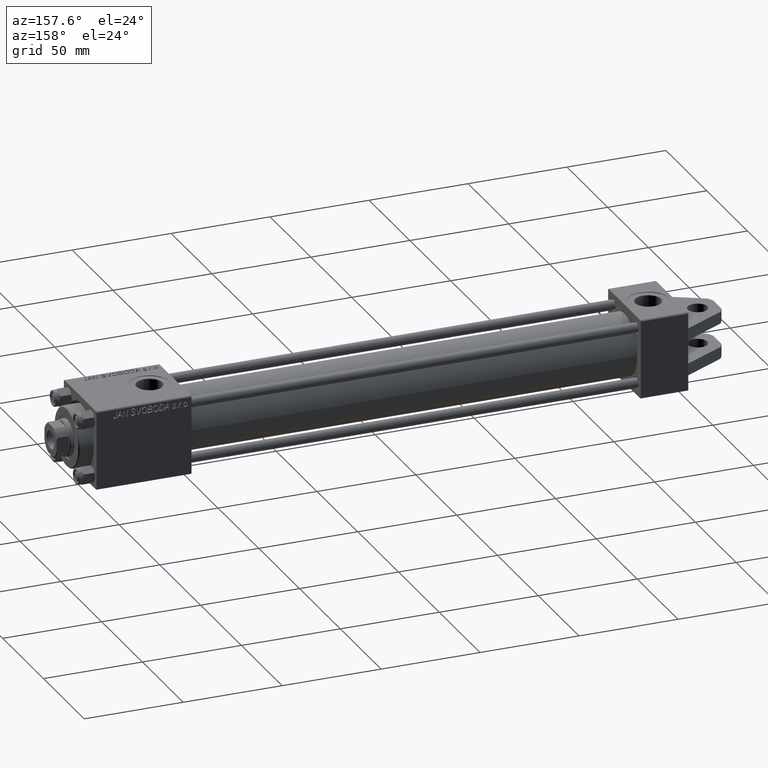
[diagram: clean part render]
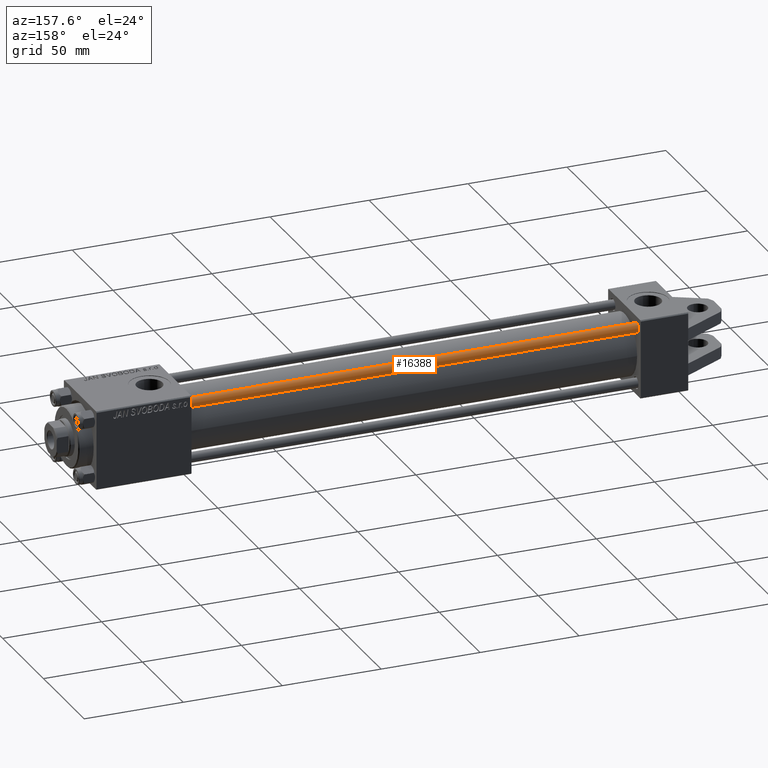
[diagram: same view with one face highlighted and labeled with its STEP entity id]
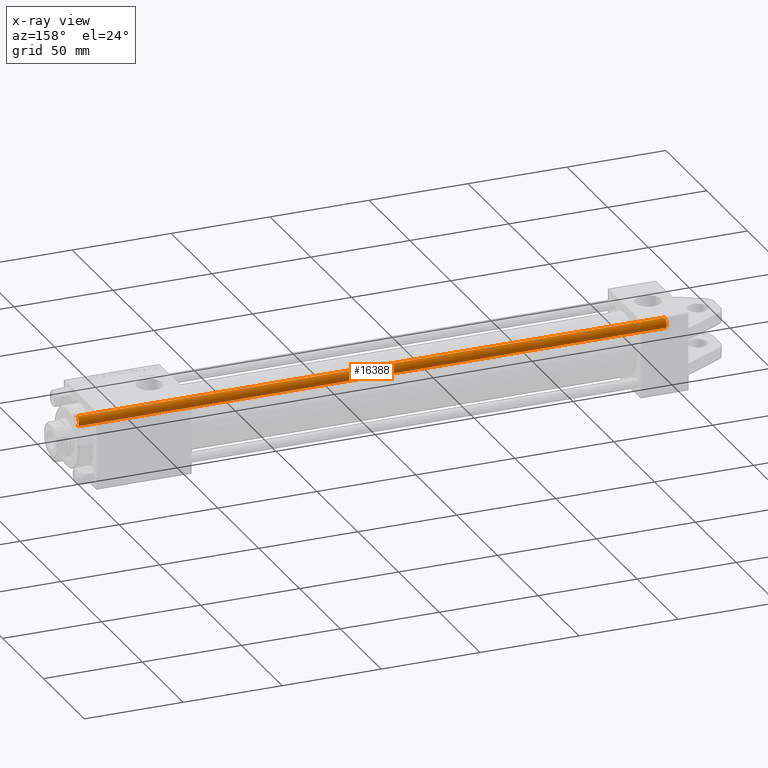
[diagram: x-ray of the same camera — body ghosted, the highlighted face saturated]
A machine part, auxiliary view. The second image highlights one B-rep face of the part: STEP entity #16388.
The next image is the same camera in x-ray: the body ghosted, the highlighted face saturated — about 0% of this face is hidden behind the body in this view.
In plain terms, the highlighted cylindrical surface (edge-blend (fillet) strip) has radius 2.5 mm, axis along (-1, 0, -0).
Its self-contained STEP definition (entity closure, byte-faithful):
#143 = DIRECTION ( 'NONE',  ( -0.000000000000000000, -0.000000000000000000, 1.000000000000000000 ) ) ;
#444 = VERTEX_POINT ( 'NONE', #29986 ) ;
#884 = CIRCLE ( 'NONE', #6431, 2.500000000000000000 ) ;
#1957 = ORIENTED_EDGE ( 'NONE', *, *, #22205, .F. ) ;
#4301 = CARTESIAN_POINT ( 'NONE',  ( 2.500000000000000000, 3.061616997868383141E-16, 0.5000000000000559552 ) ) ;
#4850 = ORIENTED_EDGE ( 'NONE', *, *, #45262, .T. ) ;
#6431 = AXIS2_PLACEMENT_3D ( 'NONE', #16340, #143, #16833 ) ;
#7301 = VERTEX_POINT ( 'NONE', #4301 ) ;
#8769 = CARTESIAN_POINT ( 'NONE',  ( 0.000000000000000000, 0.000000000000000000, 297.5000000000001137 ) ) ;
#11877 = CARTESIAN_POINT ( 'NONE',  ( 2.500000000000000000, 3.061616997868383141E-16, 298.0000000000000000 ) ) ;
#13047 = DIRECTION ( 'NONE',  ( -1.000000000000000000, 0.000000000000000000, 0.000000000000000000 ) ) ;
#15207 = VECTOR ( 'NONE', #45778, 1000.000000000000000 ) ;
#16068 = CYLINDRICAL_SURFACE ( 'NONE', #21674, 2.500000000000000000 ) ;
#16340 = CARTESIAN_POINT ( 'NONE',  ( 0.000000000000000000, 0.000000000000000000, 0.5000000000000559552 ) ) ;
#16388 = ADVANCED_FACE ( 'NONE', ( #35152 ), #16068, .T. ) ;
#16833 = DIRECTION ( 'NONE',  ( 1.000000000000000000, 0.000000000000000000, 0.000000000000000000 ) ) ;
#17885 = EDGE_CURVE ( 'NONE', #20042, #7301, #38248, .T. ) ;
#17936 = AXIS2_PLACEMENT_3D ( 'NONE', #8769, #24081, #38654 ) ;
#20042 = VERTEX_POINT ( 'NONE', #25539 ) ;
#21438 = DIRECTION ( 'NONE',  ( -0.000000000000000000, -0.000000000000000000, -1.000000000000000000 ) ) ;
#21674 = AXIS2_PLACEMENT_3D ( 'NONE', #31398, #39655, #13047 ) ;
#22205 = EDGE_CURVE ( 'NONE', #444, #27112, #44292, .T. ) ;
#24081 = DIRECTION ( 'NONE',  ( 0.000000000000000000, 0.000000000000000000, -1.000000000000000000 ) ) ;
#25203 = CARTESIAN_POINT ( 'NONE',  ( -2.500000000000000000, 0.000000000000000000, 298.0000000000000000 ) ) ;
#25539 = CARTESIAN_POINT ( 'NONE',  ( 2.500000000000000000, 3.061616997868383141E-16, 297.5000000000001137 ) ) ;
#26930 = CARTESIAN_POINT ( 'NONE',  ( -2.500000000000000000, 0.000000000000000000, 0.5000000000000559552 ) ) ;
#27112 = VERTEX_POINT ( 'NONE', #26930 ) ;
#29462 = EDGE_CURVE ( 'NONE', #444, #20042, #29983, .T. ) ;
#29983 = CIRCLE ( 'NONE', #17936, 2.500000000000000000 ) ;
#29986 = CARTESIAN_POINT ( 'NONE',  ( -2.500000000000000000, 0.000000000000000000, 297.5000000000001137 ) ) ;
#31398 = CARTESIAN_POINT ( 'NONE',  ( 0.000000000000000000, 0.000000000000000000, 298.0000000000000000 ) ) ;
#35152 = FACE_OUTER_BOUND ( 'NONE', #48079, .T. ) ;
#38248 = LINE ( 'NONE', #11877, #15207 ) ;
#38654 = DIRECTION ( 'NONE',  ( 1.000000000000000000, 0.000000000000000000, 0.000000000000000000 ) ) ;
#39655 = DIRECTION ( 'NONE',  ( -0.000000000000000000, -0.000000000000000000, -1.000000000000000000 ) ) ;
#40170 = VECTOR ( 'NONE', #21438, 1000.000000000000000 ) ;
#44292 = LINE ( 'NONE', #25203, #40170 ) ;
#45262 = EDGE_CURVE ( 'NONE', #7301, #27112, #884, .T. ) ;
#45778 = DIRECTION ( 'NONE',  ( -0.000000000000000000, -0.000000000000000000, -1.000000000000000000 ) ) ;
#47077 = ORIENTED_EDGE ( 'NONE', *, *, #29462, .T. ) ;
#48079 = EDGE_LOOP ( 'NONE', ( #47077, #48319, #4850, #1957 ) ) ;
#48319 = ORIENTED_EDGE ( 'NONE', *, *, #17885, .T. ) ;